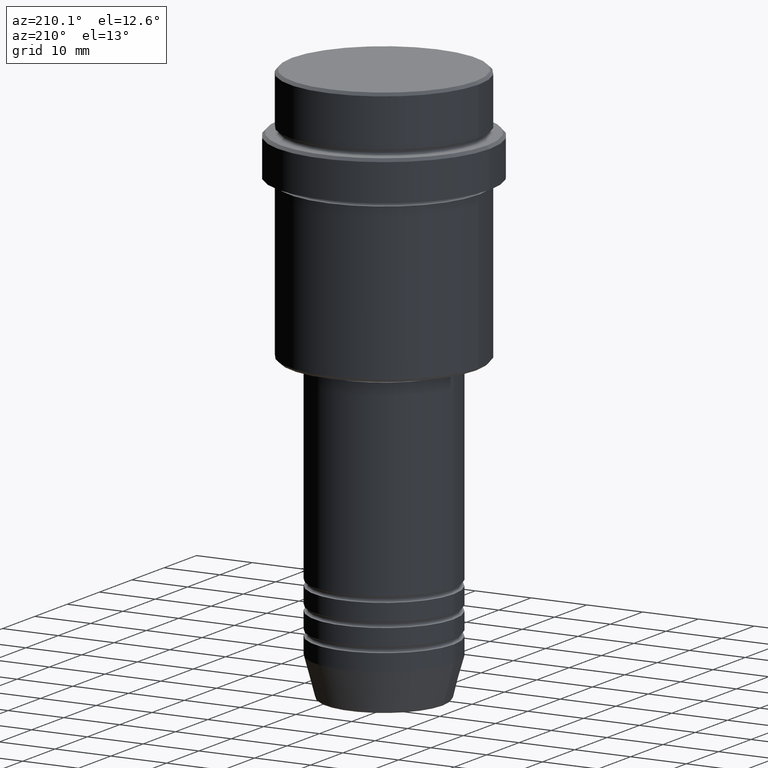
[diagram: clean part render]
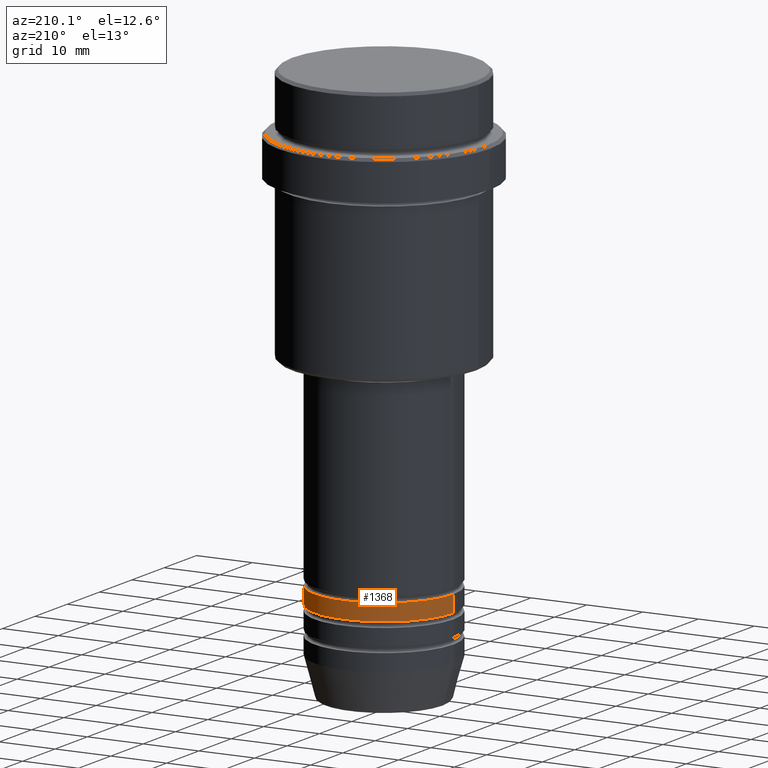
[diagram: same view with one face highlighted and labeled with its STEP entity id]
A machine part, auxiliary view. The second image highlights one B-rep face of the part: STEP entity #1368.
In plain terms, the highlighted cylindrical surface (partial cylindrical patch) has radius 12.5 mm, axis along (-0, -0, 1).
Its self-contained STEP definition (entity closure, byte-faithful):
#25 = EDGE_CURVE ( 'NONE', #1248, #87, #899, .T. ) ;
#35 = EDGE_CURVE ( 'NONE', #1035, #87, #900, .T. ) ;
#41 = CARTESIAN_POINT ( 'NONE',  ( -12.50000000000000000, 1.530808498934191521E-15, 0.000000000000000000 ) ) ;
#75 = DIRECTION ( 'NONE',  ( -0.000000000000000000, -0.000000000000000000, 1.000000000000000000 ) ) ;
#87 = VERTEX_POINT ( 'NONE', #528 ) ;
#92 = EDGE_CURVE ( 'NONE', #1072, #1035, #1173, .T. ) ;
#104 = ORIENTED_EDGE ( 'NONE', *, *, #35, .T. ) ;
#141 = VECTOR ( 'NONE', #1230, 1000.000000000000000 ) ;
#251 = CARTESIAN_POINT ( 'NONE',  ( 12.50000000000000000, 0.000000000000000000, -84.99999999999988631 ) ) ;
#277 = CARTESIAN_POINT ( 'NONE',  ( 12.50000000000000000, 0.000000000000000000, 0.000000000000000000 ) ) ;
#285 = CARTESIAN_POINT ( 'NONE',  ( 0.000000000000000000, 0.000000000000000000, 0.000000000000000000 ) ) ;
#408 = CARTESIAN_POINT ( 'NONE',  ( -12.50000000000000000, 1.530808498934191521E-15, -84.99999999999988631 ) ) ;
#429 = DIRECTION ( 'NONE',  ( -0.000000000000000000, -0.000000000000000000, 1.000000000000000000 ) ) ;
#483 = ORIENTED_EDGE ( 'NONE', *, *, #92, .T. ) ;
#519 = FACE_OUTER_BOUND ( 'NONE', #963, .T. ) ;
#528 = CARTESIAN_POINT ( 'NONE',  ( -12.50000000000000000, 1.530808498934191521E-15, -81.99999999999987210 ) ) ;
#625 = AXIS2_PLACEMENT_3D ( 'NONE', #1364, #75, #1279 ) ;
#662 = DIRECTION ( 'NONE',  ( 1.000000000000000000, 0.000000000000000000, 0.000000000000000000 ) ) ;
#666 = DIRECTION ( 'NONE',  ( -0.000000000000000000, -0.000000000000000000, 1.000000000000000000 ) ) ;
#792 = AXIS2_PLACEMENT_3D ( 'NONE', #285, #666, #1324 ) ;
#806 = DIRECTION ( 'NONE',  ( -0.000000000000000000, -0.000000000000000000, 1.000000000000000000 ) ) ;
#899 = CIRCLE ( 'NONE', #921, 12.50000000000000000 ) ;
#900 = LINE ( 'NONE', #41, #1055 ) ;
#921 = AXIS2_PLACEMENT_3D ( 'NONE', #1408, #429, #662 ) ;
#925 = LINE ( 'NONE', #277, #141 ) ;
#953 = CYLINDRICAL_SURFACE ( 'NONE', #792, 12.50000000000000000 ) ;
#963 = EDGE_LOOP ( 'NONE', ( #483, #104, #1065, #1092 ) ) ;
#1035 = VERTEX_POINT ( 'NONE', #408 ) ;
#1047 = CARTESIAN_POINT ( 'NONE',  ( 12.50000000000000000, 0.000000000000000000, -81.99999999999987210 ) ) ;
#1055 = VECTOR ( 'NONE', #806, 1000.000000000000000 ) ;
#1065 = ORIENTED_EDGE ( 'NONE', *, *, #25, .F. ) ;
#1072 = VERTEX_POINT ( 'NONE', #251 ) ;
#1092 = ORIENTED_EDGE ( 'NONE', *, *, #1166, .F. ) ;
#1166 = EDGE_CURVE ( 'NONE', #1072, #1248, #925, .T. ) ;
#1173 = CIRCLE ( 'NONE', #625, 12.50000000000000000 ) ;
#1230 = DIRECTION ( 'NONE',  ( -0.000000000000000000, -0.000000000000000000, 1.000000000000000000 ) ) ;
#1248 = VERTEX_POINT ( 'NONE', #1047 ) ;
#1279 = DIRECTION ( 'NONE',  ( 1.000000000000000000, 0.000000000000000000, 0.000000000000000000 ) ) ;
#1324 = DIRECTION ( 'NONE',  ( 1.000000000000000000, 0.000000000000000000, 0.000000000000000000 ) ) ;
#1364 = CARTESIAN_POINT ( 'NONE',  ( 0.000000000000000000, 0.000000000000000000, -84.99999999999988631 ) ) ;
#1368 = ADVANCED_FACE ( 'NONE', ( #519 ), #953, .T. ) ;
#1408 = CARTESIAN_POINT ( 'NONE',  ( 0.000000000000000000, 0.000000000000000000, -81.99999999999987210 ) ) ;